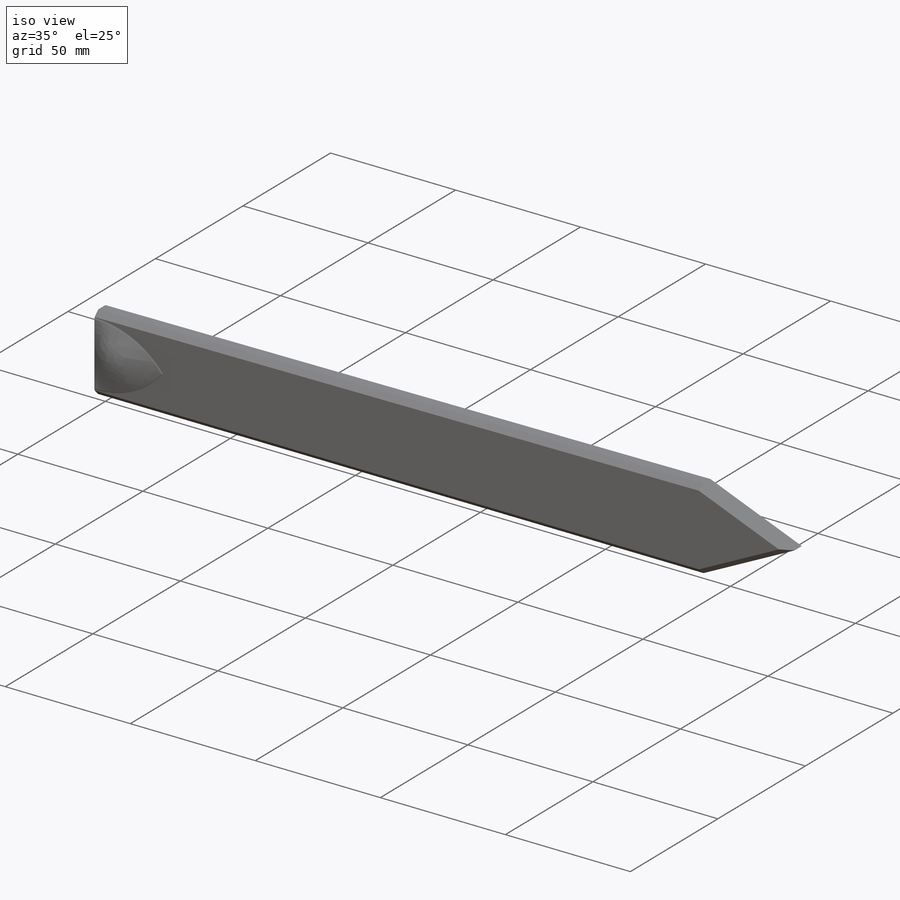
[diagram: iso view]
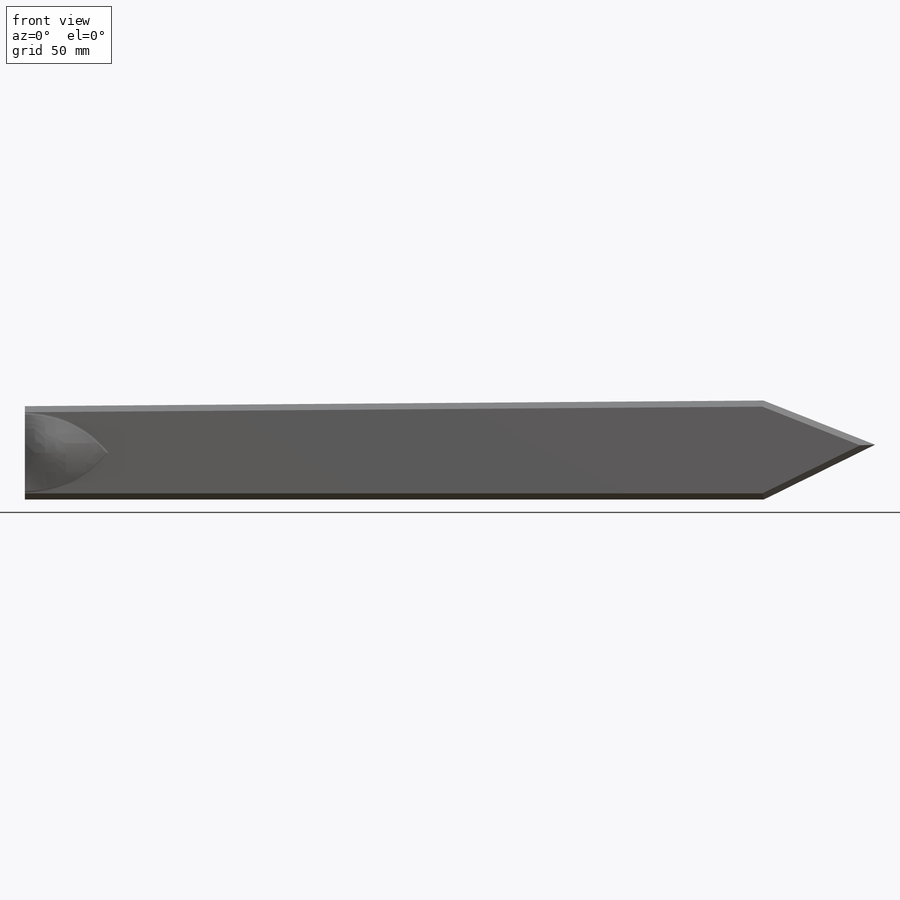
[diagram: front view]
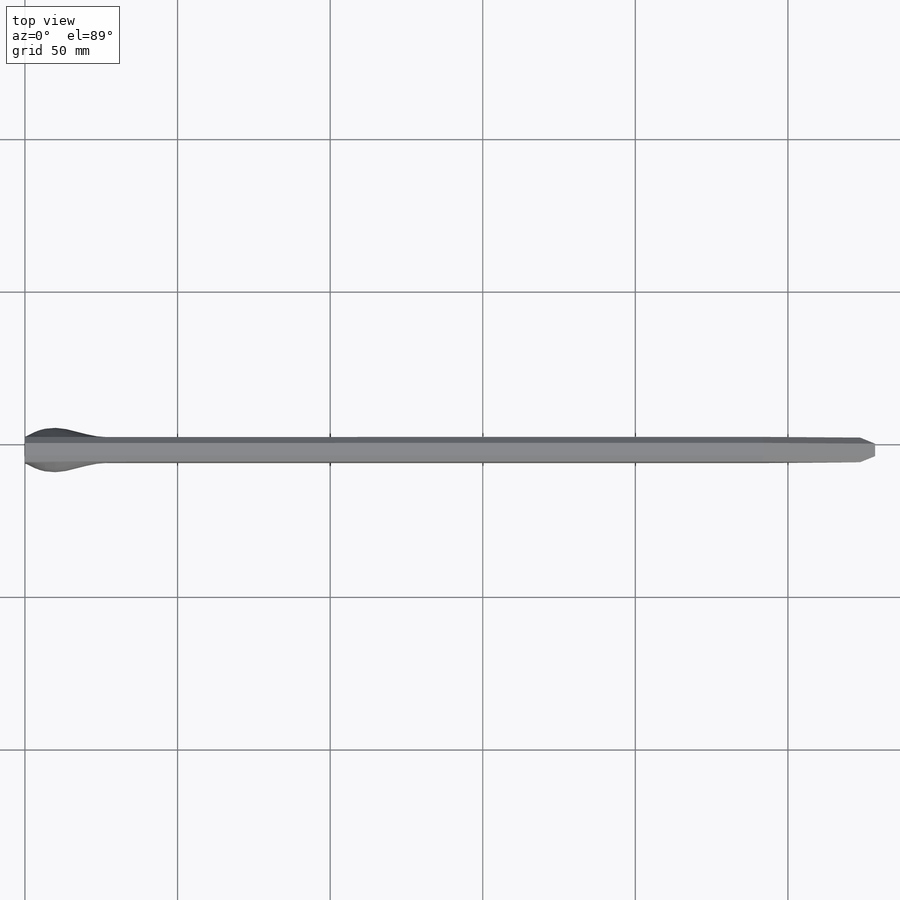
[diagram: top view]
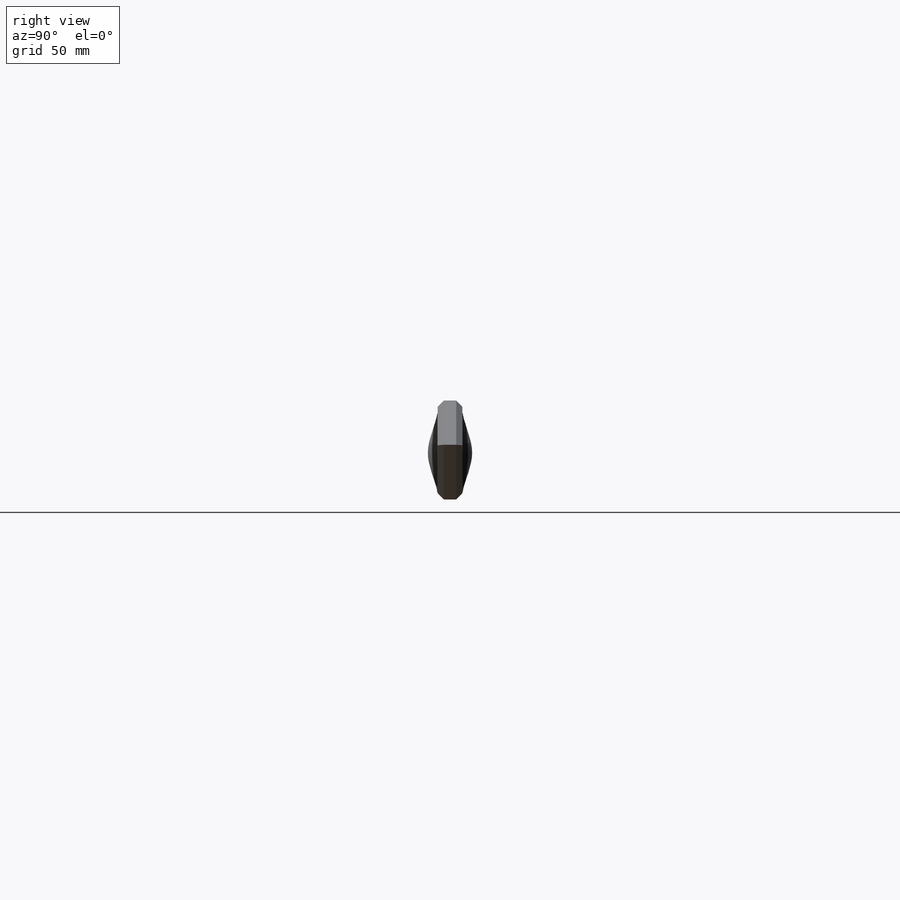
[diagram: right view]
SOLIDWORKS PART (.sldprt)
format: sldprt  version: not decoded by parser v0  size: 336,384 bytes
history: native  units: mm
features: sketch x7, plane x4, extrude x4, cut_extrude x3, material x1, mirror x1, fillet x1, dome x1, chamfer x1 (+8 scaffold rows collapsed)
feature tree (31):
  scaffold x8  (default folders/planes/origin — collapsed)
  material  "Matériau <non spécifié>"
  plane  "Plan de face"
  plane  "Plan de dessus"
  plane  "Plan de droite"
  sketch  "Esquisse1"  dims[c1.D1=240.13mm c1.D2=240.13mm c1.D3=28.87mm c1.D4=~269.08244mm c1.D6=240.13mm c2.D2=28.87mm c2.D3=~240.23664mm c2.D1=12.0mm c3.D2=245.0mm c3.D3=30.5mm c3.D4=245.0mm c4.D4=~0.785162deg c5.D4=~27.35745mm c5.D1=245.0mm c6.D1=~0.392581deg c7.D1=245.0mm c8.D1=~179.607419deg c9.D1=12.0mm c9.D3=~296.153194mm c10.D1=~33.426898mm c10.D3=30.3mm c10.D5=~244.782445mm c11.D5=~0.392581deg c12.D5=~26.857238mm c12.D4=~28.857215mm c13.D5=~24.857262mm c13.D1=0.5mm c13.D2=~31.983325mm c14.D2=~179.96859deg c15.D2=~241.423627mm c16.D2=~179.634524deg c17.D2=0.5mm c17.D5=1.0mm c17.D1=1.0mm c18.D2=1.0mm c18.D1=1.0mm c18.D4=2.0mm c18.D3=3.0mm]
  extrude  "Boss.-Extru.1"  Depth=4.1mm
  sketch  "Esquisse2"
  extrude  "Boss.-Extru.2"  Depth=2mm
  sketch  "Esquisse3"
  extrude  "Boss.-Extru.3"  Depth=2mm
  sketch  "Esquisse7"  dims[D1=0.0mm]
  cut_extrude  "Enlèv. mat.-Extru.1"  Depth=22mm
  sketch  "Esquisse9"
  cut_extrude  "Enlèv. mat.-Extru.2"  Depth=22mm
  sketch  "Esquisse12"
  plane  "Plan4"  Offset=4.05mm
  extrude  "Boss.-Extru.9"  Depth=0.2mm
  mirror  "Symétrie9"
  fillet  "Congé14"  Radius=1mm
  dome  "Dôme3"
  chamfer  "Chanfrein2"  Distance=2mm Angle=45deg
  sketch  "Esquisse16"
  cut_extrude  "Enlèv. mat.-Extru.6"  Depth=0.2mm
decode coverage: 11 of 18 modeling features carry decoded parameters
note: ~ marks probable driven/reference dimensions
note: suppression state not decoded; provenance and decode notes live in map.json
